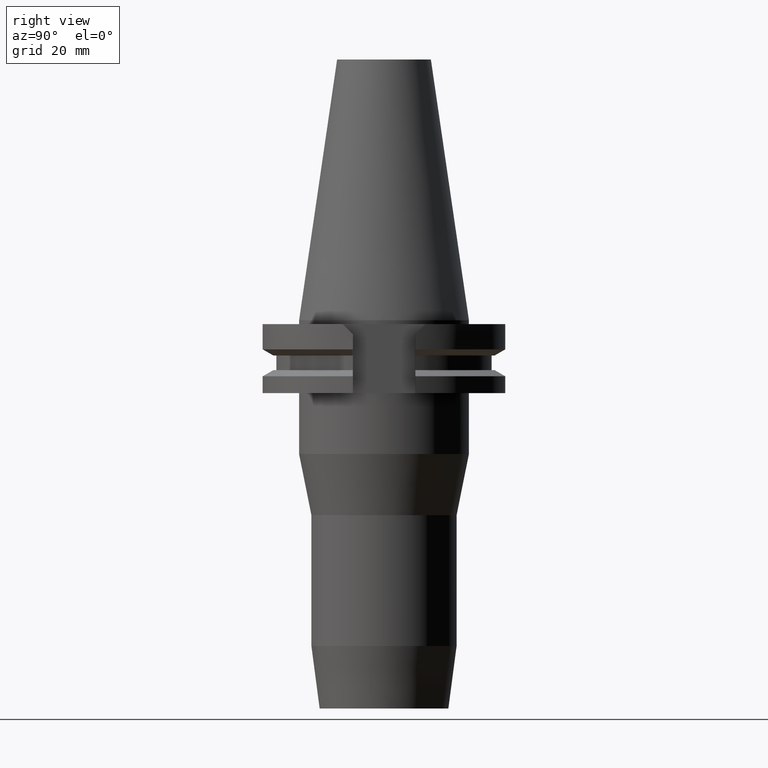
[diagram: clean part render]
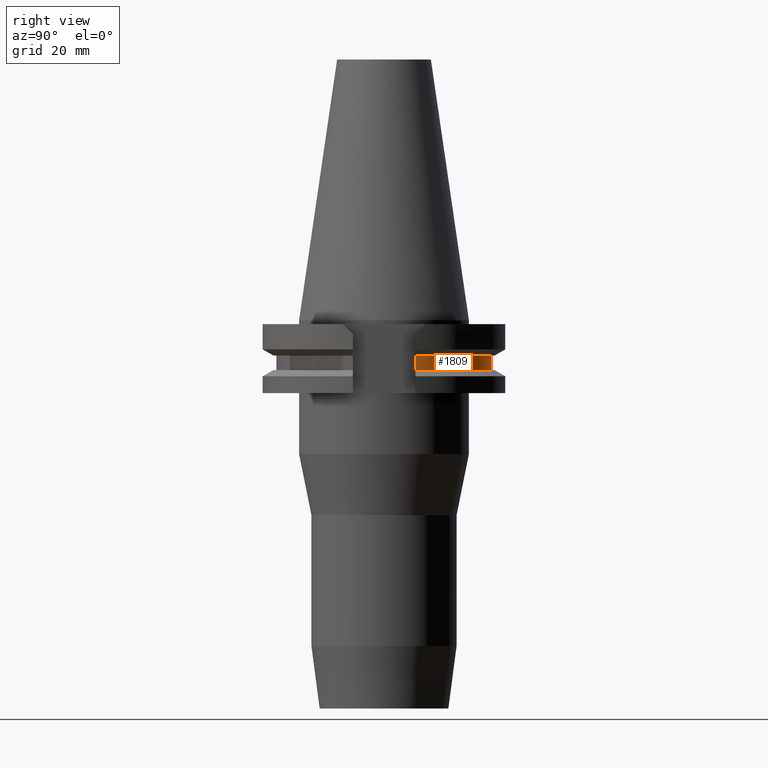
[diagram: same view with one face highlighted and labeled with its STEP entity id]
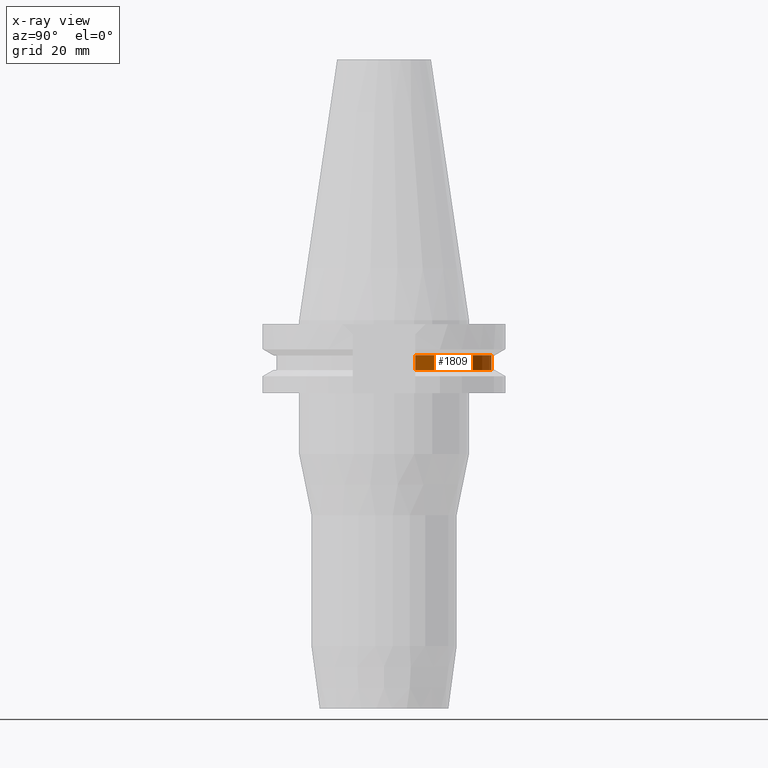
[diagram: x-ray of the same camera — body ghosted, the highlighted face saturated]
A machine part, right view. The second image highlights one B-rep face of the part: STEP entity #1809.
The next image is the same camera in x-ray: the body ghosted, the highlighted face saturated — about 0% of this face is hidden behind the body in this view.
In plain terms, the highlighted cylindrical surface (partial cylindrical patch) has radius 28.18 mm, axis along (0, 0, -1).
Its self-contained STEP definition (entity closure, byte-faithful):
#453=CARTESIAN_POINT('',(0.E0,2.164471368983E-14,-1.30475E1));
#454=DIRECTION('',(0.E0,0.E0,1.E0));
#455=DIRECTION('',(9.568350128908E-1,2.906316536551E-1,0.E0));
#456=AXIS2_PLACEMENT_3D('',#453,#454,#455);
#461=CARTESIAN_POINT('',(0.E0,2.164471368983E-14,-1.30475E1));
#462=DIRECTION('',(0.E0,0.E0,1.E0));
#463=DIRECTION('',(0.E0,1.E0,0.E0));
#464=AXIS2_PLACEMENT_3D('',#461,#462,#463);
#492=DIRECTION('',(0.E0,0.E0,1.E0));
#493=VECTOR('',#492,3.84E0);
#494=CARTESIAN_POINT('',(2.696361066326E1,8.19E0,-1.30475E1));
#495=LINE('',#494,#493);
#499=DIRECTION('',(0.E0,0.E0,-1.E0));
#500=VECTOR('',#499,3.84E0);
#501=CARTESIAN_POINT('',(-2.696361066326E1,8.19E0,-9.2075E0));
#502=LINE('',#501,#500);
#529=CARTESIAN_POINT('',(0.E0,2.164471368983E-14,-9.2075E0));
#530=DIRECTION('',(0.E0,0.E0,-1.E0));
#531=DIRECTION('',(-9.568350128908E-1,2.906316536551E-1,0.E0));
#532=AXIS2_PLACEMENT_3D('',#529,#530,#531);
#537=CARTESIAN_POINT('',(0.E0,2.164471368983E-14,-9.2075E0));
#538=DIRECTION('',(0.E0,0.E0,-1.E0));
#539=DIRECTION('',(0.E0,1.E0,0.E0));
#540=AXIS2_PLACEMENT_3D('',#537,#538,#539);
#1408=CARTESIAN_POINT('',(-2.696361066326E1,8.19E0,-1.30475E1));
#1409=VERTEX_POINT('',#1408);
#1410=CARTESIAN_POINT('',(-2.696361066326E1,8.19E0,-9.2075E0));
#1411=VERTEX_POINT('',#1410);
#1424=CARTESIAN_POINT('',(2.696361066326E1,8.19E0,-1.30475E1));
#1425=VERTEX_POINT('',#1424);
#1426=CARTESIAN_POINT('',(-6.305166448056E-14,2.818E1,-1.30475E1));
#1427=VERTEX_POINT('',#1426);
#1430=CARTESIAN_POINT('',(2.696361066326E1,8.19E0,-9.2075E0));
#1431=VERTEX_POINT('',#1430);
#1432=CARTESIAN_POINT('',(4.351173924716E-14,2.818E1,-9.2075E0));
#1433=VERTEX_POINT('',#1432);
#1794=CARTESIAN_POINT('',(0.E0,2.164471368983E-14,7.67425E1));
#1795=DIRECTION('',(0.E0,0.E0,-1.E0));
#1796=DIRECTION('',(0.E0,-1.E0,0.E0));
#1797=AXIS2_PLACEMENT_3D('',#1794,#1795,#1796);
#1798=CYLINDRICAL_SURFACE('',#1797,2.818E1);
#1799=ORIENTED_EDGE('',*,*,#1641,.T.);
#1801=ORIENTED_EDGE('',*,*,#1800,.F.);
#1803=ORIENTED_EDGE('',*,*,#1802,.F.);
#1804=ORIENTED_EDGE('',*,*,#1734,.T.);
#1805=ORIENTED_EDGE('',*,*,#1786,.F.);
#1806=ORIENTED_EDGE('',*,*,#1784,.F.);
#1807=EDGE_LOOP('',(#1799,#1801,#1803,#1804,#1805,#1806));
#1808=FACE_OUTER_BOUND('',#1807,.F.);
#457=CIRCLE('',#456,2.818E1);
#465=CIRCLE('',#464,2.818E1);
#533=CIRCLE('',#532,2.818E1);
#541=CIRCLE('',#540,2.818E1);
#1641=EDGE_CURVE('',#1425,#1431,#495,.T.);
#1734=EDGE_CURVE('',#1411,#1409,#502,.T.);
#1784=EDGE_CURVE('',#1425,#1427,#457,.T.);
#1786=EDGE_CURVE('',#1427,#1409,#465,.T.);
#1800=EDGE_CURVE('',#1433,#1431,#541,.T.);
#1802=EDGE_CURVE('',#1411,#1433,#533,.T.);
#1809=ADVANCED_FACE('',(#1808),#1798,.T.);